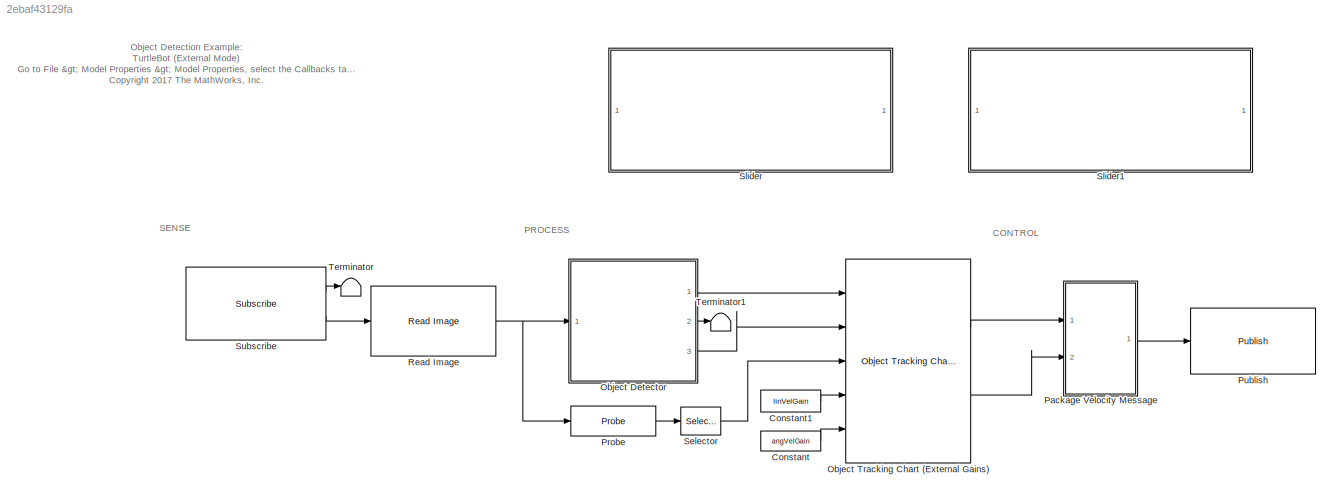
MODEL slx_2ebaf43129fa
KIND model
CONFIG AbsTol = auto
CONFIG EnableMultiTasking = on
CONFIG FixedStep = params.Ts
CONFIG MaxStep = auto
CONFIG MinStep = auto
CONFIG PreLoadFcn = params = controlParams;\nlinVelGain = params.linVelGain;\nangVelGain = params.angVelGain;\n\nrosshutdown;\nloadIpAddresses;\nrosinit(turtlebotIp);
CONFIG RelTol = 1e-3
CONFIG SampleTimeConstraint = Unconstrained
CONFIG Solver = FixedStepDiscrete
CONFIG SolverName = FixedStepDiscrete
CONFIG StartTime = 0.0
CONFIG StopTime = inf
WORKSPACE source: MAT-file member
WORKSPACE SL_ROS_VariableLengthArrays_MaxSizes: struct (value not decoded)
BLOCK [Constant] Constant
  Value = angVelGain
BLOCK [Constant] Constant1
  Value = linVelGain
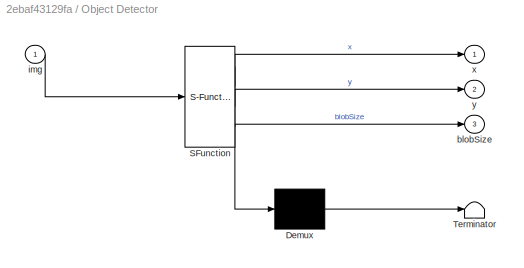
BLOCK [SubSystem] Object Detector
  ErrorFcn = Stateflow.Translate.translate
  PermitHierarchicalResolution = ExplicitOnly
  Ports = [1, 3]
  RequestExecContextInheritance = off
  SFBlockType = MATLAB Function
  TreatAsAtomicUnit = on
  Variant = off
BLOCK [Demux] Object Detector/ Demux 
  Outputs = 1
  Ports = [1, 1]
BLOCK [S-Function] Object Detector/ SFunction 
  EnableBusSupport = on
  FunctionName = sf_sfun
  PortCounts = [1 4]
  Ports = [1, 4]
  SFcnIsStateOwnerBlock = off
  SFunctionDeploymentMode = off
  Tag = Stateflow S-Function turtleBotExampleExternal 1
BLOCK [Terminator] Object Detector/ Terminator 
BLOCK [Outport] Object Detector/blobSize
  IconDisplay = Port number
  Port = 3
BLOCK [Inport] Object Detector/img
  IconDisplay = Port number
BLOCK [Outport] Object Detector/x
  IconDisplay = Port number
BLOCK [Outport] Object Detector/y
  IconDisplay = Port number
  Port = 2
BLOCK [Reference] Object Tracking Chart (External Gains)  REF=controlLib/Object Tracking Chart 
(External Gains)
  Ports = [5, 2]
  SourceBlock = controlLib/Object Tracking Chart \n(External Gains)
  SourceType = SubSystem
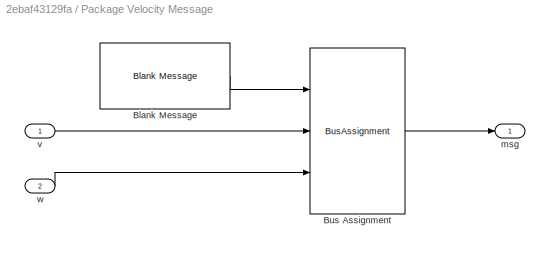
BLOCK [SubSystem] Package Velocity Message
  Ports = [2, 1]
  RequestExecContextInheritance = off
  Variant = off
BLOCK [Reference] Package Velocity Message/Blank Message  REF=robotlib/Blank Message
  Ports = [0, 1]
  SourceBlock = robotlib/Blank Message
  SourceLibraryInfo = This block requires Robotics System Toolbox
  SourceProductBaseCode = RO
  SourceProductName = Robotics System Toolbox
  SourceType = ROS Blank Message
BLOCK [BusAssignment] Package Velocity Message/Bus Assignment
  AssignedSignals = Linear.X,Angular.Z
  Ports = [3, 1]
BLOCK [Outport] Package Velocity Message/msg
  IconDisplay = Port number
BLOCK [Inport] Package Velocity Message/v
  IconDisplay = Port number
BLOCK [Inport] Package Velocity Message/w
  IconDisplay = Port number
  Port = 2
BLOCK [Probe] Probe
  Ports = [1, 1]
  ProbeComplexSignal = off
  ProbeSampleTime = off
  ProbeSignalDimensions = on
  ProbeWidth = off
BLOCK [Reference] Publish  REF=robotlib/Publish
  Ports = [1]
  SourceBlock = robotlib/Publish
  SourceLibraryInfo = This block requires Robotics System Toolbox
  SourceProductBaseCode = RO
  SourceProductName = Robotics System Toolbox
  SourceType = ROS Publish
BLOCK [Reference] Read Image  REF=robotlib/Read Image
  Ports = [1, 1]
  SourceBlock = robotlib/Read Image
  SourceLibraryInfo = This block requires Robotics System Toolbox
  SourceProductBaseCode = RO
  SourceProductName = Robotics System Toolbox
  SourceType = robotics.slros.internal.block.ReadImage
BLOCK [Selector] Selector
  IndexOptions = Index vector (dialog)
  Indices = 2
  InputPortWidth = 3
  OutputSizes = 1
  Ports = [1, 1]
BLOCK [SubSystem] Slider
  DialogController = hmiCreateDDGDialog
  IsWebBlock = on
  MaskHideContents = on
  Ports = []
  RequestExecContextInheritance = off
  Variant = off
BLOCK [SubSystem] Slider1
  DialogController = hmiCreateDDGDialog
  IsWebBlock = on
  MaskHideContents = on
  Ports = []
  RequestExecContextInheritance = off
  Variant = off
BLOCK [Reference] Subscribe  REF=robotlib/Subscribe
  Ports = [0, 2]
  SourceBlock = robotlib/Subscribe
  SourceLibraryInfo = This block requires Robotics System Toolbox
  SourceProductBaseCode = RO
  SourceProductName = Robotics System Toolbox
  SourceType = ROS Subscribe
BLOCK [Terminator] Terminator
BLOCK [Terminator] Terminator1
ANNOTATION (root): Object Detection Example: TurtleBot (External Mode) Go to File > Model Properties > Model Properties , select the Callbacks tab, and go to PreLoadFcn . Here, you can set up MATLAB code to run when loading the model, such as initalizing ROS with the correct IP address. <copyright redacted>
ANNOTATION (root): CONTROL
ANNOTATION (root): PROCESS
ANNOTATION (root): SENSE
LINE Constant1:1 -> Object Tracking Chart (External Gains):4
LINE Constant:1 -> Object Tracking Chart (External Gains):5
LINE Object Detector:1 -> Object Tracking Chart (External Gains):1
LINE Object Detector:2 -> Terminator1:1
LINE Object Detector:3 -> Object Tracking Chart (External Gains):2
LINE Object Tracking Chart (External Gains):1 -> Package Velocity Message:1
LINE Object Tracking Chart (External Gains):2 -> Package Velocity Message:2
LINE Package Velocity Message/Blank Message:1 -> Package Velocity Message/Bus Assignment:1
LINE Package Velocity Message/Bus Assignment:1 -> Package Velocity Message/msg:1
LINE Package Velocity Message/v:1 -> Package Velocity Message/Bus Assignment:2
LINE Package Velocity Message/w:1 -> Package Velocity Message/Bus Assignment:3
LINE Package Velocity Message:1 -> Publish:1
LINE Probe:1 -> Selector:1
NET Read Image:1 -> Object Detector:1, Probe:1
LINE Selector:1 -> Object Tracking Chart (External Gains):3
LINE Subscribe:1 -> Terminator:1
LINE Subscribe:2 -> Read Image:1
note: NET lines group one-source signal fan-out (src -> all destinations, sorted); 1:1 wires keep LINE
CHART Object Detector states=1 transitions=1
  STATE_LABEL 'eML_blk_kernel()'
  STATE_LABEL 'SCRIPT:\nfunction [x,y,blobSize] = CircleDetection(img)\n    \n    % Initialize outputs\n    x = 0;\n    y = 0;\n    blobSize = 0;\n    \n    % Call external function\n    resizeScale = 0.5;\n    [x,y,blobSize] = detectCircle(img,resizeScale);\n\nend\n'
